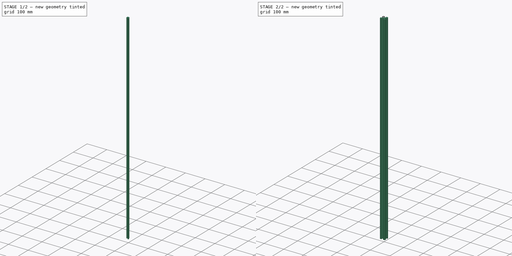
[diagram: build sequence overview — one tinted view per stage of 2, left to right]
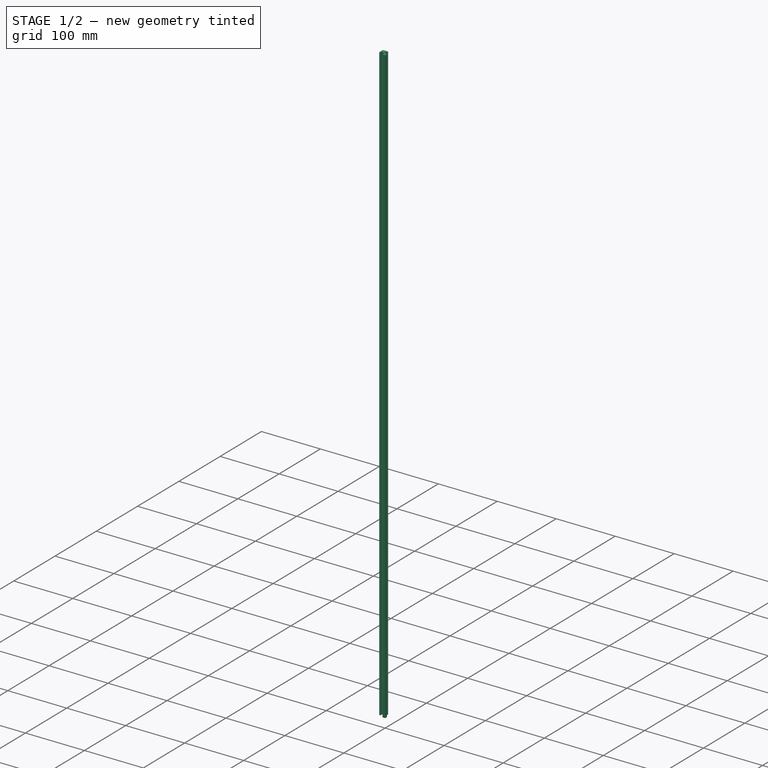
[diagram: stage 1 of 2 — iso view after this stage's code; geometry added in this stage tinted green]
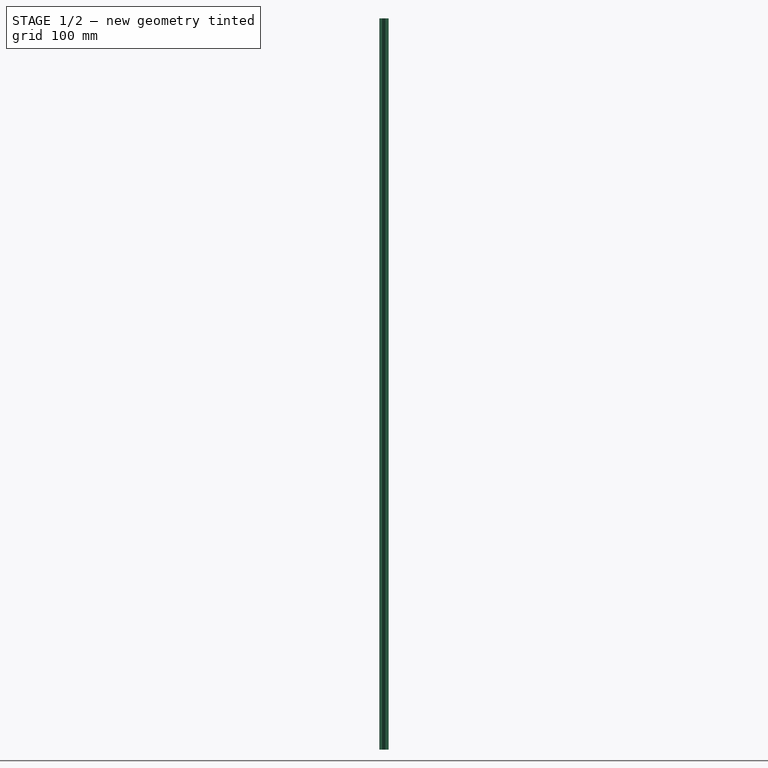
[diagram: stage 1 of 2 — front view after this stage's code; geometry added in this stage tinted green]
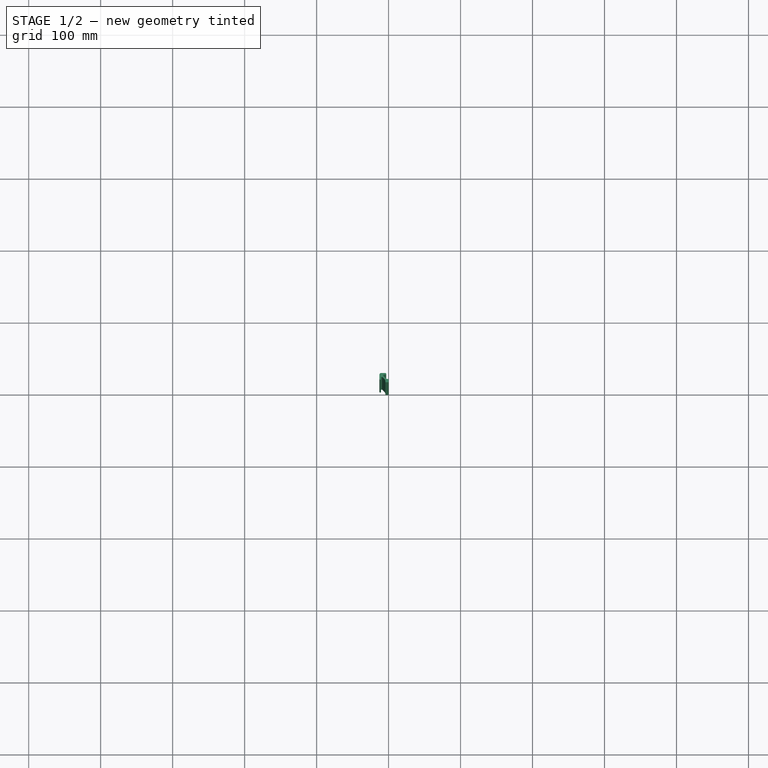
[diagram: stage 1 of 2 — top view after this stage's code; geometry added in this stage tinted green]
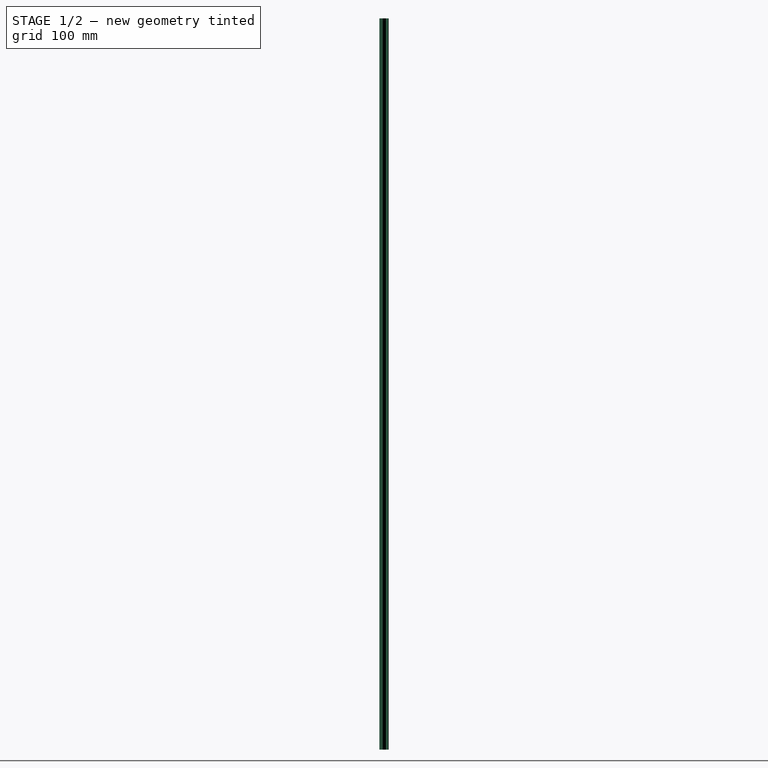
[diagram: stage 1 of 2 — right view after this stage's code; geometry added in this stage tinted green]
FCSTD DOCUMENT  (FreeCAD 0.21R33675 (Git))
Label: parametric_1010_8020_beam
License: All rights reserved
LicenseURL: http://en.wikipedia.org/wiki/All_rights_reserved
objects: Sketcher::SketchObject×1, PartDesign::Pad×1, PartDesign::PolarPattern×1, PartDesign::Body×1, Spreadsheet::Sheet×1
note: 5 computed .brp shape members not serialized (recipe doc carries the construction recipe); baked Part::Feature solids carry a one-line shape summary decoded from their .brp

FEATURE [Sketcher::SketchObject] Sketch  label="QtrProfileSketch"
  FullyConstrained = true
  MapMode = 5
  Support = -> [XY_Plane]
  sketch-geometry (21):
    g0: LineSegment StartX=0 StartY=4.51 StartZ=0 EndX=-1.62 EndY=4.51 EndZ=0
    g1: ArcOfCircle CenterX=-1.62 CenterY=7.74 CenterZ=0 NormalX=0 NormalY=0 NormalZ=1 AngleXU=0 Radius=3.23 StartAngle=3.92699 EndAngle=4.71239
    g2: LineSegment StartX=-7.12836 StartY=8.68045 StartZ=0 EndX=-3.90395 EndY=5.45605 EndZ=0
    g3: LineSegment StartX=0 StartY=0 StartZ=0 EndX=-12.7 EndY=12.7 EndZ=0
    g4: LineSegment StartX=-6.38032 StartY=10.4864 StartZ=0 EndX=-4.3668 EndY=10.4864 EndZ=0
    g5: ArcOfCircle CenterX=-6.38032 CenterY=9.4285 CenterZ=0 NormalX=0 NormalY=0 NormalZ=1 AngleXU=0 Radius=1.0579 StartAngle=1.5708 EndAngle=3.92699
    g6: ArcOfCircle CenterX=-4.3668 CenterY=11.5932 CenterZ=0 NormalX=0 NormalY=0 NormalZ=1 AngleXU=0 Radius=1.1068 StartAngle=4.71239 EndAngle=7.85398
    g7: ArcOfCircle CenterX=-10.54 CenterY=10.54 CenterZ=0 NormalX=0 NormalY=0 NormalZ=1 AngleXU=0 Radius=2.16 StartAngle=1.5708 EndAngle=2.35619
    g8: LineSegment StartX=-10.54 StartY=12.7 StartZ=0 EndX=-4.3668 EndY=12.7 EndZ=0
    g9: GeomPoint X=-3.26 Y=11.5932 Z=0
    g10: LineSegment StartX=0 StartY=4.51 StartZ=0 EndX=0 EndY=0 EndZ=0
    g11: LineSegment StartX=0 StartY=0 StartZ=0 EndX=-4.51 EndY=0 EndZ=0
    g12: LineSegment StartX=-4.51 StartY=0 StartZ=0 EndX=-4.51 EndY=1.62 EndZ=0
    g13: ArcOfCircle CenterX=-7.74 CenterY=1.62 CenterZ=0 NormalX=0 NormalY=0 NormalZ=1 AngleXU=0 Radius=3.23 StartAngle=0 EndAngle=0.785398
    g14: LineSegment StartX=-8.68045 StartY=7.12836 StartZ=0 EndX=-5.45605 EndY=3.90395 EndZ=0
    g15: ArcOfCircle CenterX=-9.4285 CenterY=6.38032 CenterZ=0 NormalX=0 NormalY=0 NormalZ=1 AngleXU=0 Radius=1.0579 StartAngle=0.785398 EndAngle=3.14159
    g16: LineSegment StartX=-10.4864 StartY=6.38032 StartZ=0 EndX=-10.4864 EndY=4.3668 EndZ=0
    g17: ArcOfCircle CenterX=-11.5932 CenterY=4.3668 CenterZ=0 NormalX=0 NormalY=0 NormalZ=1 AngleXU=0 Radius=1.1068 StartAngle=3.14159 EndAngle=6.28319
    g18: LineSegment StartX=-12.7 StartY=10.54 StartZ=0 EndX=-12.7 EndY=4.3668 EndZ=0
    g19: GeomPoint X=-11.5932 Y=3.26 Z=0
    g20: ArcOfCircle CenterX=-10.54 CenterY=10.54 CenterZ=0 NormalX=0 NormalY=0 NormalZ=1 AngleXU=0 Radius=2.16 StartAngle=2.35619 EndAngle=3.14159
  constraints (53):
    c: Horizontal(g0)
    c: PointOnObject(g0,g-2)
    c: Tangent(g1,g0) = 1.5708
    c: Coincident(g3,g-1)
    c: Angle(g-1,g3) = 2.35619
    c: Tangent(g2,g1) = -1.5708
    c: DistanceY(g3,g0) = 4.51
    c: DistanceX(g0,g0) = 1.62
    c: Parallel(g2,g3)
    c: Radius(g1) = 3.23
    c: Horizontal(g4)
    c: Tangent(g5,g2) = -1.5708
    c: Tangent(g5,g4) = 1.5708
    c: Distance(g2) = 4.56
    c: DistanceX(g3,g3) = 12.7
    c: Vertical(g6,g6)
    c: Tangent(g6,g4) = -1.5708
    c: Horizontal(g3,g6)
    c: Radius(g5) = 1.0579
    c: PointOnObject(g7,g3)
    c: Perpendicular(g7,g3)
    c: Tangent(g8,g6) = 1.5708
    c: Radius(g7) = 2.16
    c: Tangent(g8,g7) = 1.5708
    c: Horizontal(g6,g9)
    c: PointOnObject(g9,g6)
    c: DistanceX(g3,g9) = 9.44
    c: Coincident(g10,g0)
    c: Coincident(g10,g3)
    c: Coincident(g11,g10)
    c: Horizontal(g11)
    c: Equal(g11,g10)
    c: Coincident(g12,g11)
    c: Vertical(g12)
    c: Equal(g12,g0)
    c: Tangent(g13,g12) = -1.5708
    c: Equal(g13,g1)
    c: Parallel(g14,g3)
    c: Tangent(g14,g13) = 1.5708
    c: Equal(g14,g2)
    c: Tangent(g15,g14) = 1.5708
    c: Vertical(g16)
    c: Tangent(g15,g16) = -1.5708
    c: Equal(g15,g5)
    c: Equal(g16,g4)
    c: Tangent(g17,g16) = 1.5708
    c: Vertical(g18)
    c: Tangent(g18,g17) = -1.5708
    c: PointOnObject(g19,g17)
    c: Vertical(g19,g17)
    c: Tangent(g20,g7) = -1.5708
    c: Tangent(g20,g18) = -1.5708
    c: Equal(g7,g20)
FEATURE [PartDesign::Pad] Pad  label="QtrProfilePad"
  Direction = (0,0,1)
  Length = 1016
  Length2 = 10
  Profile = -> Sketch
  ReferenceAxis = -> Sketch [N_Axis]
  Type = 0
  expr: Length = Spreadsheet.beam_length
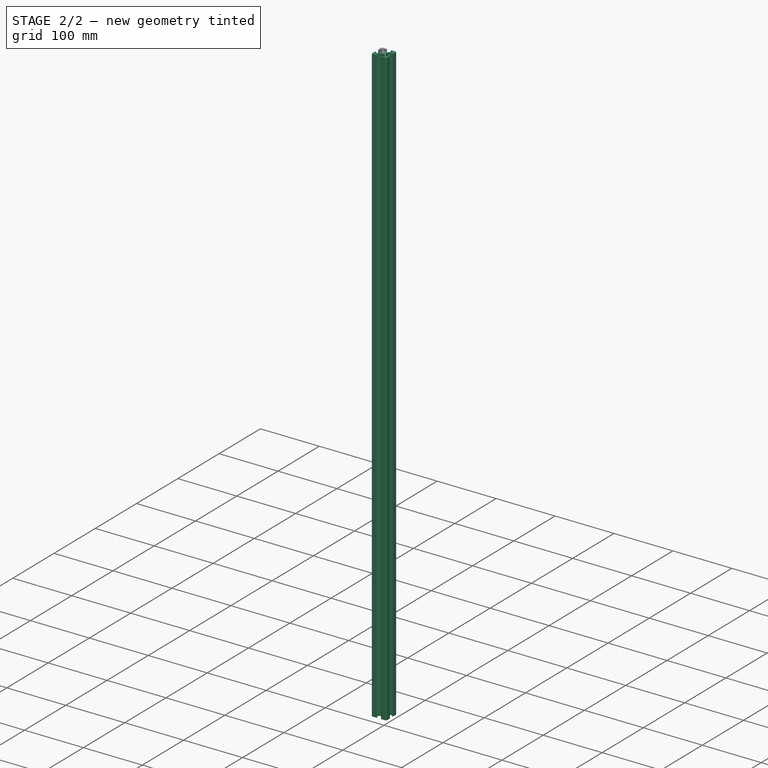
[diagram: stage 2 of 2 — iso view after this stage's code; geometry added in this stage tinted green]
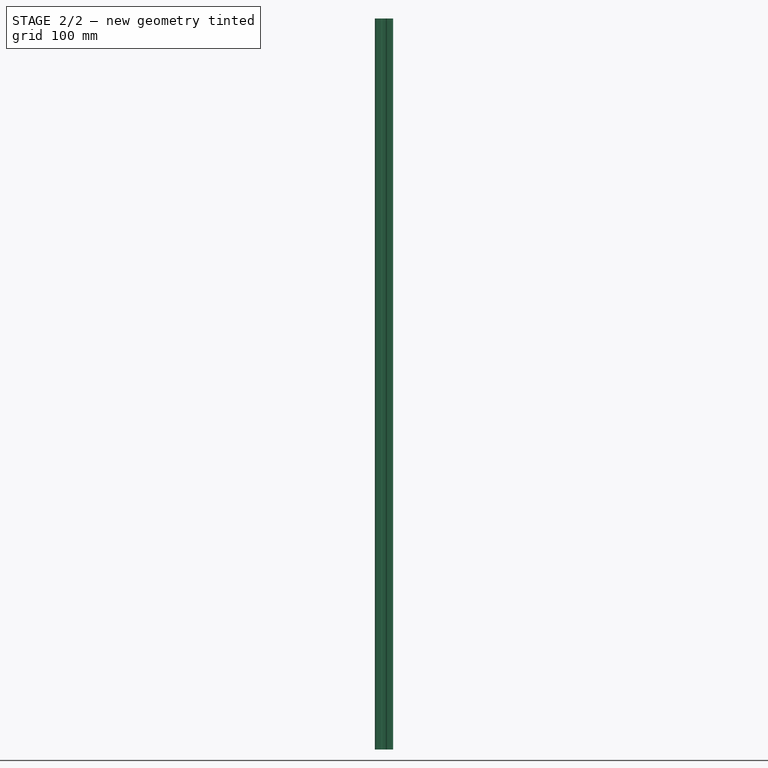
[diagram: stage 2 of 2 — front view after this stage's code; geometry added in this stage tinted green]
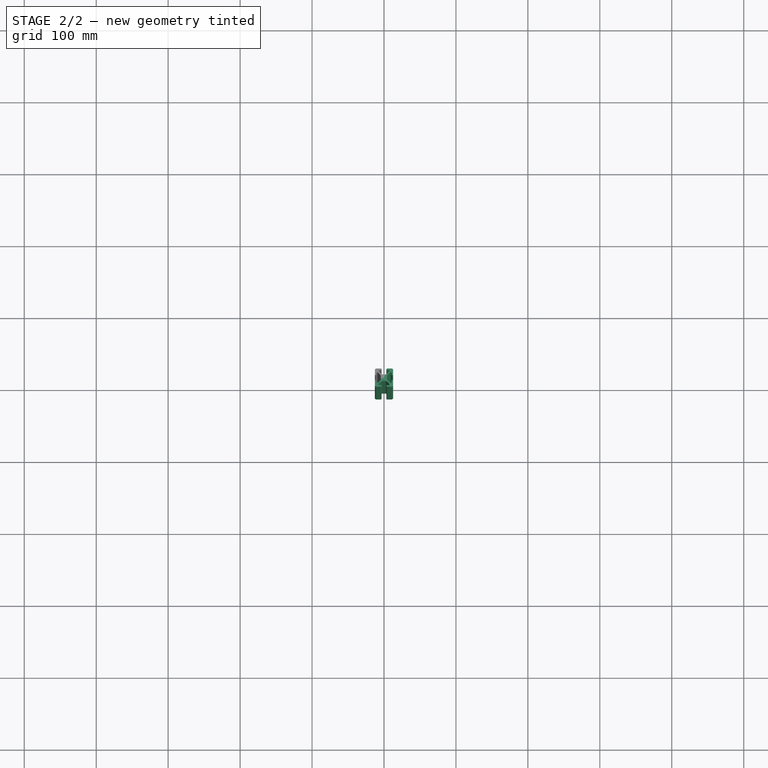
[diagram: stage 2 of 2 — top view after this stage's code; geometry added in this stage tinted green]
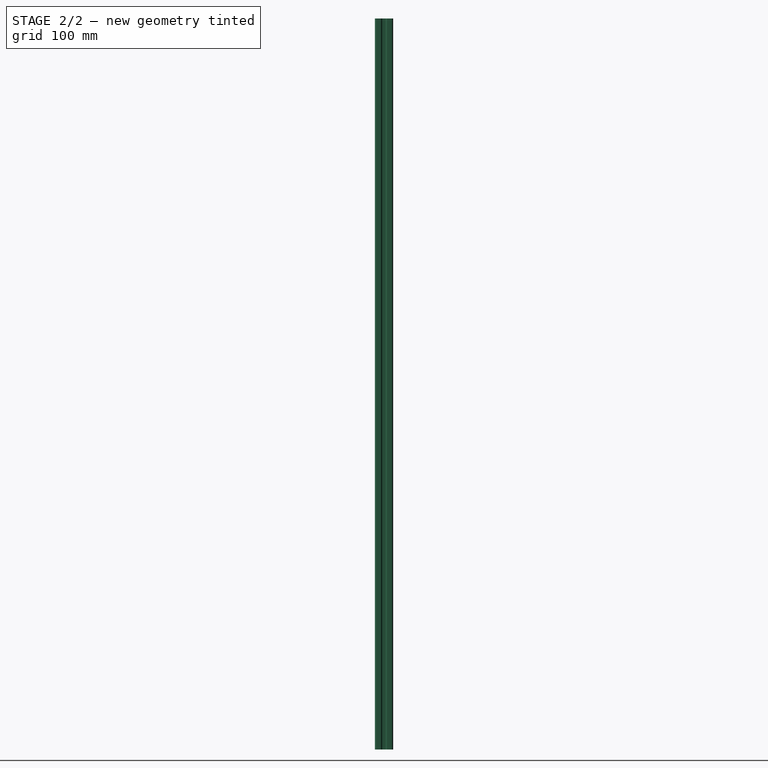
[diagram: stage 2 of 2 — right view after this stage's code; geometry added in this stage tinted green]
FEATURE [PartDesign::PolarPattern] PolarPattern  label="ProfilePolarPattern"
  Angle = 360
  Axis = -> Sketch [N_Axis]
  BaseFeature = -> Pad
  Occurrences = 4
  Originals = -> [Pad]
FEATURE [PartDesign::Body] Body
  Group = -> [Sketch,Pad,PolarPattern]
  Origin = -> Origin
  Tip = -> PolarPattern
FEATURE [Spreadsheet::Sheet] Spreadsheet
  cells = A2='Design Parameters; A3='beam_length; B3(beam_length)==40 in
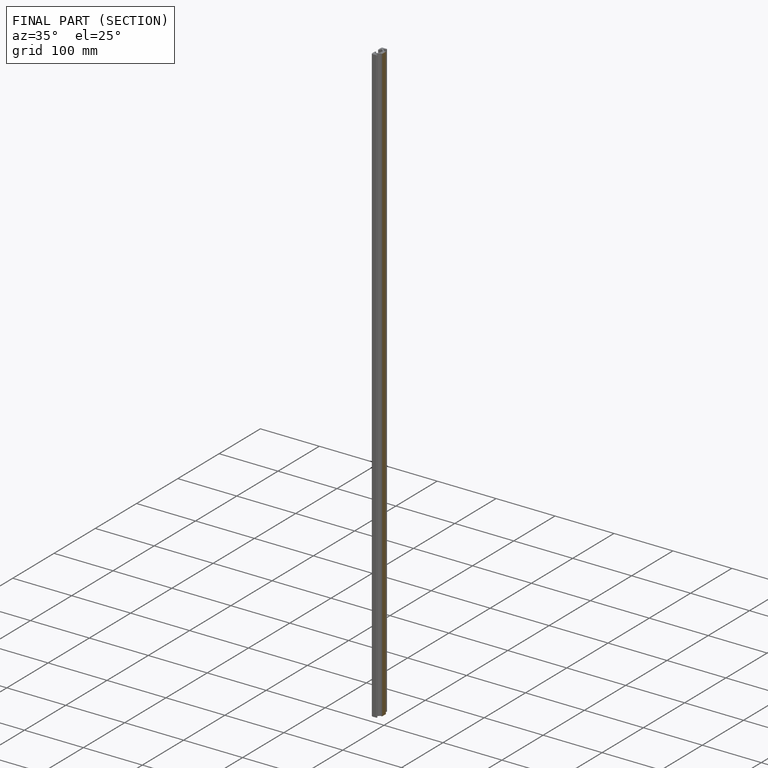
[diagram: finished part — half-section view (interior)]
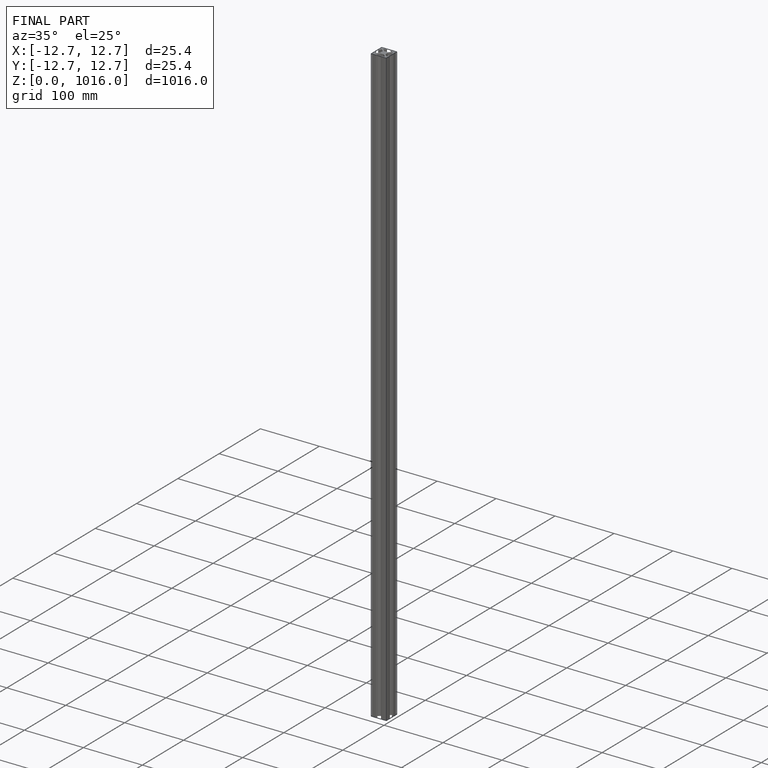
[diagram: finished part — iso view with bounding-box wireframe]
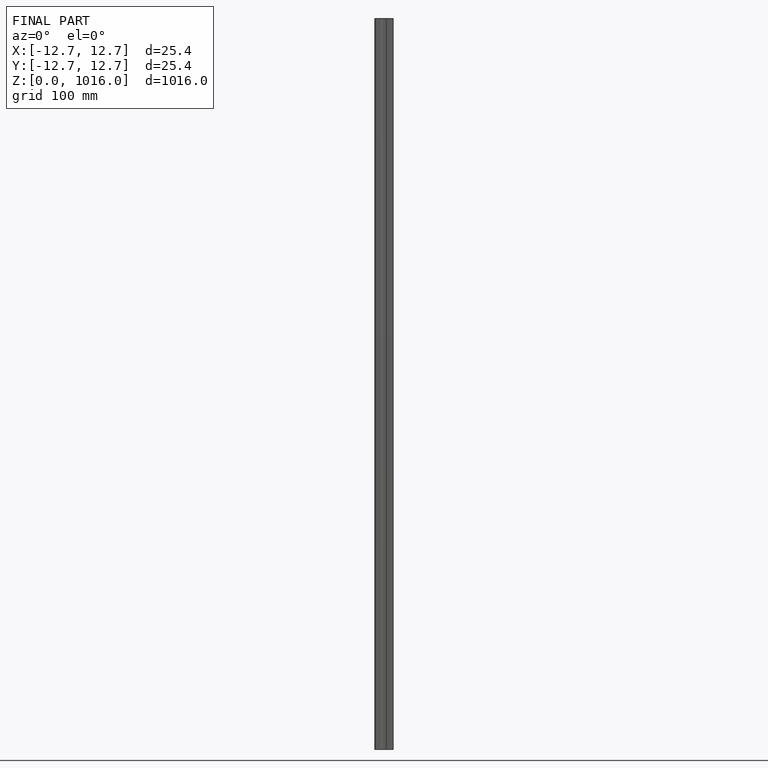
[diagram: finished part — front view with bounding-box wireframe]
